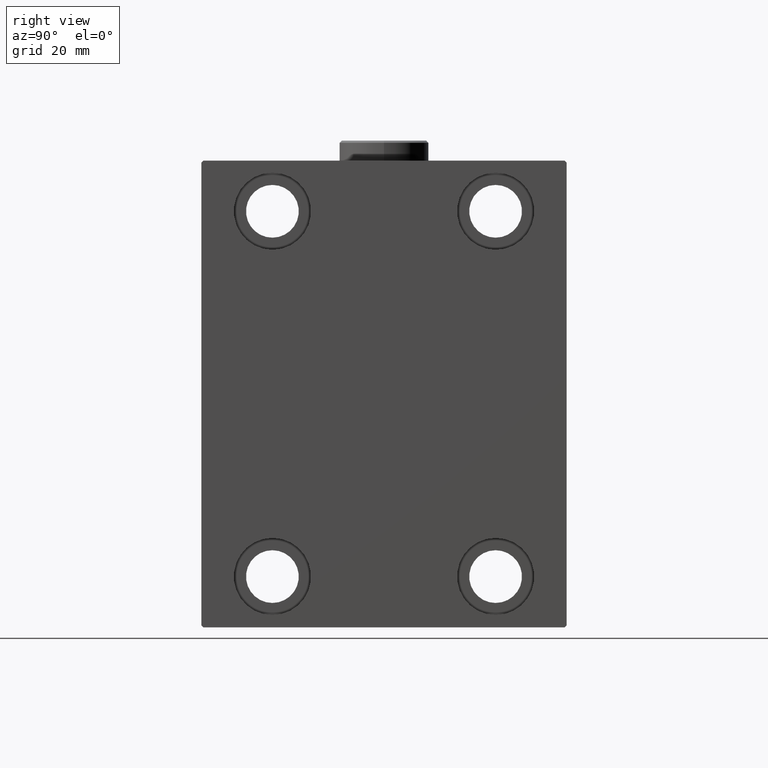
[diagram: clean part render]
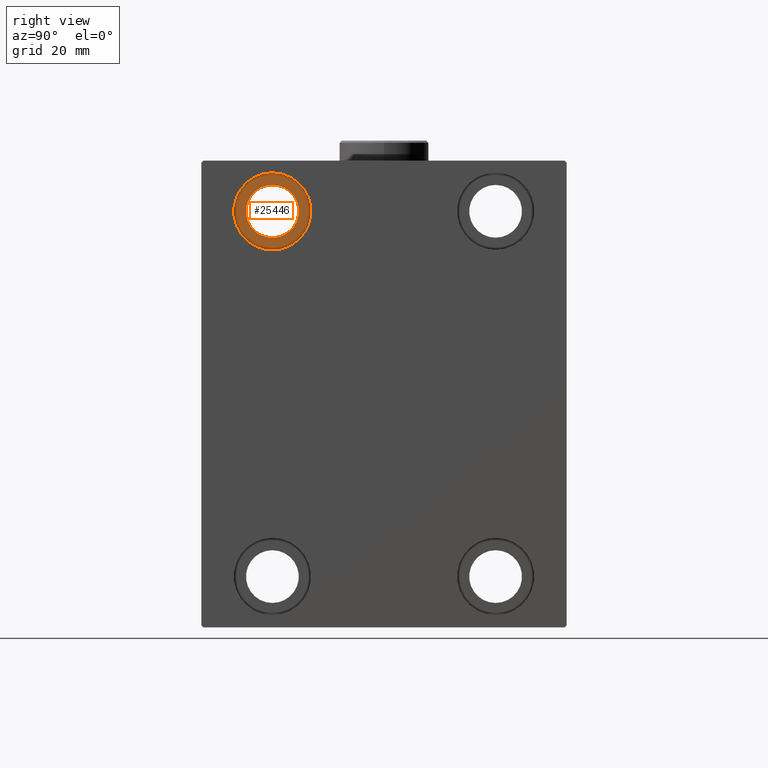
[diagram: same view with one face highlighted and labeled with its STEP entity id]
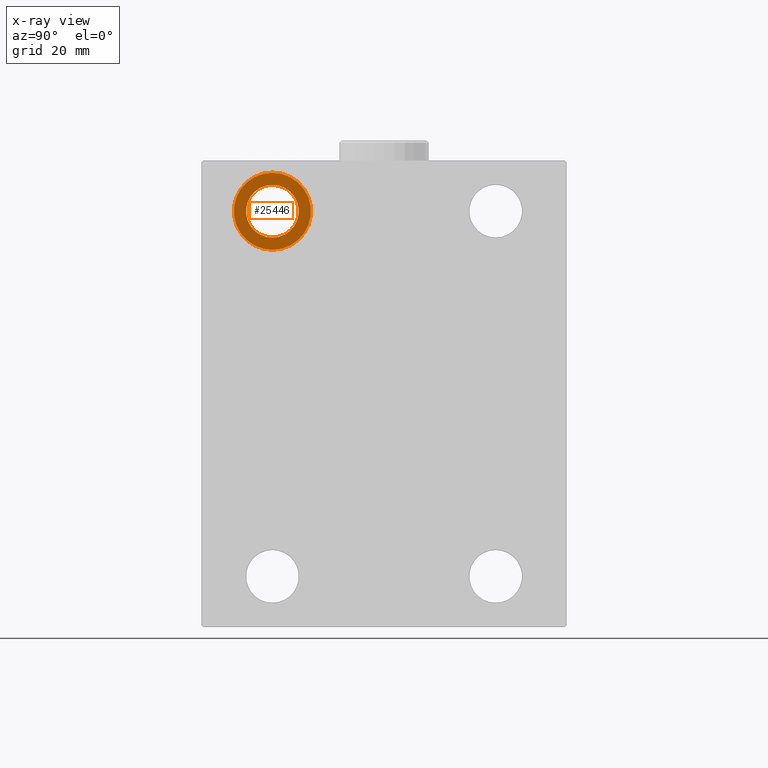
[diagram: x-ray of the same camera — body ghosted, the highlighted face saturated]
A machine part, right view. The second image highlights one B-rep face of the part: STEP entity #25446.
The next image is the same camera in x-ray: the body ghosted, the highlighted face saturated — about 0% of this face is hidden behind the body in this view.
In plain terms, the highlighted planar face has unit normal (1, 0, 0).
Its self-contained STEP definition (entity closure, byte-faithful):
#269 = AXIS2_PLACEMENT_3D ( 'NONE', #9212, #23124, #37046 ) ;
#1362 = EDGE_CURVE ( 'NONE', #1651, #38242, #29135, .T. ) ;
#1651 = VERTEX_POINT ( 'NONE', #31771 ) ;
#1802 = ORIENTED_EDGE ( 'NONE', *, *, #10714, .F. ) ;
#2791 = AXIS2_PLACEMENT_3D ( 'NONE', #27499, #37991, #6737 ) ;
#5853 = ORIENTED_EDGE ( 'NONE', *, *, #1362, .T. ) ;
#6737 = DIRECTION ( 'NONE',  ( 0.000000000000000000, 0.000000000000000000, 1.000000000000000000 ) ) ;
#7924 = DIRECTION ( 'NONE',  ( 1.000000000000000000, 0.000000000000000000, -0.000000000000000000 ) ) ;
#8014 = AXIS2_PLACEMENT_3D ( 'NONE', #30943, #13591, #27511 ) ;
#9212 = CARTESIAN_POINT ( 'NONE',  ( 75.00000000000000000, -27.49999999999998934, 45.00000000000000711 ) ) ;
#10714 = EDGE_CURVE ( 'NONE', #13228, #23636, #26359, .T. ) ;
#13063 = DIRECTION ( 'NONE',  ( -1.000000000000000000, -0.000000000000000000, -0.000000000000000000 ) ) ;
#13228 = VERTEX_POINT ( 'NONE', #28284 ) ;
#13591 = DIRECTION ( 'NONE',  ( -1.000000000000000000, -0.000000000000000000, -0.000000000000000000 ) ) ;
#14540 = CARTESIAN_POINT ( 'NONE',  ( 75.00000000000000000, 0.000000000000000000, 0.000000000000000000 ) ) ;
#15210 = CIRCLE ( 'NONE', #2791, 9.500000000000001776 ) ;
#16057 = AXIS2_PLACEMENT_3D ( 'NONE', #14540, #7924, #21840 ) ;
#18620 = EDGE_LOOP ( 'NONE', ( #5853, #41174 ) ) ;
#20326 = EDGE_CURVE ( 'NONE', #23636, #13228, #15210, .T. ) ;
#21163 = FACE_BOUND ( 'NONE', #18620, .T. ) ;
#21840 = DIRECTION ( 'NONE',  ( 0.000000000000000000, 0.000000000000000000, 1.000000000000000000 ) ) ;
#23124 = DIRECTION ( 'NONE',  ( -1.000000000000000000, -0.000000000000000000, -0.000000000000000000 ) ) ;
#23636 = VERTEX_POINT ( 'NONE', #31402 ) ;
#24874 = AXIS2_PLACEMENT_3D ( 'NONE', #44112, #13063, #33614 ) ;
#25446 = ADVANCED_FACE ( 'NONE', ( #42606, #21163 ), #31880, .T. ) ;
#26359 = CIRCLE ( 'NONE', #24874, 9.500000000000001776 ) ;
#27242 = CIRCLE ( 'NONE', #269, 6.499999999999999112 ) ;
#27499 = CARTESIAN_POINT ( 'NONE',  ( 75.00000000000000000, -27.49999999999998934, 45.00000000000000711 ) ) ;
#27511 = DIRECTION ( 'NONE',  ( 0.000000000000000000, 0.000000000000000000, -1.000000000000000000 ) ) ;
#28284 = CARTESIAN_POINT ( 'NONE',  ( 75.00000000000000000, -27.49999999999998934, 54.50000000000000711 ) ) ;
#29135 = CIRCLE ( 'NONE', #8014, 6.499999999999999112 ) ;
#30414 = EDGE_LOOP ( 'NONE', ( #31653, #1802 ) ) ;
#30943 = CARTESIAN_POINT ( 'NONE',  ( 75.00000000000000000, -27.49999999999998934, 45.00000000000000711 ) ) ;
#31402 = CARTESIAN_POINT ( 'NONE',  ( 75.00000000000000000, -27.49999999999998934, 35.50000000000000711 ) ) ;
#31653 = ORIENTED_EDGE ( 'NONE', *, *, #20326, .F. ) ;
#31771 = CARTESIAN_POINT ( 'NONE',  ( 75.00000000000000000, -27.49999999999998934, 51.50000000000000711 ) ) ;
#31880 = PLANE ( 'NONE',  #16057 ) ;
#33614 = DIRECTION ( 'NONE',  ( 0.000000000000000000, 0.000000000000000000, 1.000000000000000000 ) ) ;
#36330 = CARTESIAN_POINT ( 'NONE',  ( 75.00000000000000000, -27.49999999999998934, 38.50000000000000711 ) ) ;
#37046 = DIRECTION ( 'NONE',  ( 0.000000000000000000, 0.000000000000000000, -1.000000000000000000 ) ) ;
#37991 = DIRECTION ( 'NONE',  ( -1.000000000000000000, -0.000000000000000000, -0.000000000000000000 ) ) ;
#38242 = VERTEX_POINT ( 'NONE', #36330 ) ;
#41174 = ORIENTED_EDGE ( 'NONE', *, *, #42964, .T. ) ;
#42606 = FACE_OUTER_BOUND ( 'NONE', #30414, .T. ) ;
#42964 = EDGE_CURVE ( 'NONE', #38242, #1651, #27242, .T. ) ;
#44112 = CARTESIAN_POINT ( 'NONE',  ( 75.00000000000000000, -27.49999999999998934, 45.00000000000000711 ) ) ;